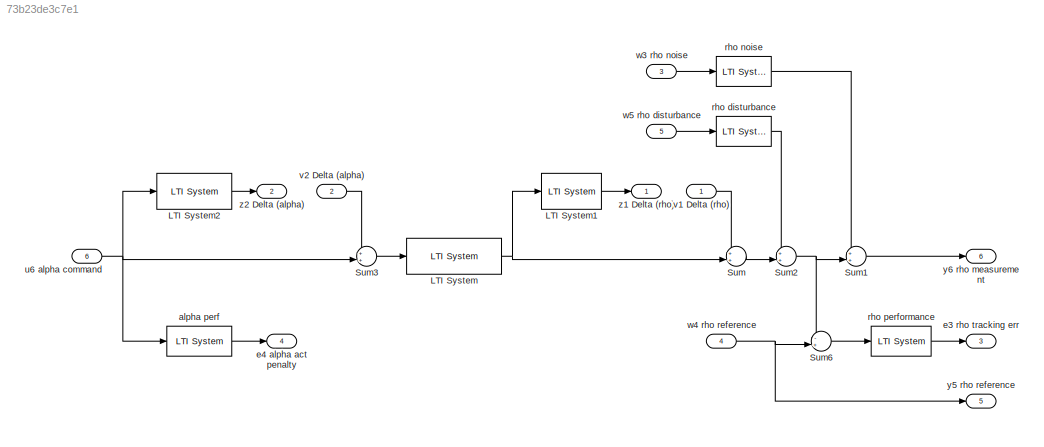
MODEL slx_73b23de3c7e1
KIND model
BLOCK [Reference] LTI System  REF=cstblocks/LTI System
  IC = []
  Ports = [1, 1]
  SourceBlock = cstblocks/LTI System
  SourceType = LTI Block
  sys = P_car
BLOCK [Reference] LTI System1  REF=cstblocks/LTI System
  IC = []
  Ports = [1, 1]
  SourceBlock = cstblocks/LTI System
  SourceType = LTI Block
  sys = W_rho
BLOCK [Reference] LTI System2  REF=cstblocks/LTI System
  IC = []
  Ports = [1, 1]
  SourceBlock = cstblocks/LTI System
  SourceType = LTI Block
  sys = W_alpha
BLOCK [Sum] Sum
  IconShape = round
  InputSameDT = off
  Inputs = ++|
  OutDataTypeStr = Inherit: Inherit via internal rule
  Ports = [2, 1]
  SaturateOnIntegerOverflow = off
BLOCK [Sum] Sum1
  IconShape = round
  InputSameDT = off
  Inputs = ++|
  OutDataTypeStr = Inherit: Inherit via internal rule
  Ports = [2, 1]
  SaturateOnIntegerOverflow = off
BLOCK [Sum] Sum2
  IconShape = round
  InputSameDT = off
  Inputs = ++|
  OutDataTypeStr = Inherit: Inherit via internal rule
  Ports = [2, 1]
  SaturateOnIntegerOverflow = off
BLOCK [Sum] Sum3
  IconShape = round
  InputSameDT = off
  Inputs = ++|
  OutDataTypeStr = Inherit: Inherit via internal rule
  Ports = [2, 1]
  SaturateOnIntegerOverflow = off
BLOCK [Sum] Sum6
  IconShape = round
  InputSameDT = off
  Inputs = -+|
  OutDataTypeStr = Inherit: Inherit via internal rule
  Ports = [2, 1]
  SaturateOnIntegerOverflow = off
BLOCK [Reference] alpha perf  REF=cstblocks/LTI System
  IC = []
  Ports = [1, 1]
  SourceBlock = cstblocks/LTI System
  SourceType = LTI Block
  sys = W_alphaperf
BLOCK [Outport] e3 rho tracking err
  IconDisplay = Port number
  Port = 3
BLOCK [Outport] e4 alpha act penalty
  IconDisplay = Port number
  Port = 4
BLOCK [Reference] rho disturbance  REF=cstblocks/LTI System
  IC = []
  Ports = [1, 1]
  SourceBlock = cstblocks/LTI System
  SourceType = LTI Block
  sys = W_rhod
BLOCK [Reference] rho noise  REF=cstblocks/LTI System
  IC = []
  Ports = [1, 1]
  SourceBlock = cstblocks/LTI System
  SourceType = LTI Block
  sys = W_rhon
BLOCK [Reference] rho performance  REF=cstblocks/LTI System
  IC = []
  Ports = [1, 1]
  SourceBlock = cstblocks/LTI System
  SourceType = LTI Block
  sys = W_rhoperf
BLOCK [Inport] u6 alpha command
  IconDisplay = Port number
  Port = 6
BLOCK [Inport] v1 Delta (rho)
  IconDisplay = Port number
BLOCK [Inport] v2 Delta (alpha)
  IconDisplay = Port number
  Port = 2
BLOCK [Inport] w3 rho noise
  IconDisplay = Port number
  Port = 3
BLOCK [Inport] w4 rho reference
  IconDisplay = Port number
  Port = 4
BLOCK [Inport] w5 rho disturbance
  IconDisplay = Port number
  Port = 5
BLOCK [Outport] y5 rho reference
  IconDisplay = Port number
  Port = 5
BLOCK [Outport] y6 rho measurement
  IconDisplay = Port number
  Port = 6
BLOCK [Outport] z1 Delta (rho)
  IconDisplay = Port number
BLOCK [Outport] z2 Delta (alpha)
  IconDisplay = Port number
  Port = 2
LINE LTI System1:1 -> z1 Delta (rho):1
LINE LTI System2:1 -> z2 Delta (alpha):1
NET LTI System:1 -> LTI System1:1, Sum:2
LINE Sum1:1 -> y6 rho measurement:1
NET Sum2:1 -> Sum1:2, Sum6:1
LINE Sum3:1 -> LTI System:1
LINE Sum6:1 -> rho performance:1
LINE Sum:1 -> Sum2:2
LINE alpha perf:1 -> e4 alpha act penalty:1
LINE rho disturbance:1 -> Sum2:1
LINE rho noise:1 -> Sum1:1
LINE rho performance:1 -> e3 rho tracking err:1
NET u6 alpha command:1 -> LTI System2:1, Sum3:2, alpha perf:1
LINE v1 Delta (rho):1 -> Sum:1
LINE v2 Delta (alpha):1 -> Sum3:1
LINE w3 rho noise:1 -> rho noise:1
NET w4 rho reference:1 -> Sum6:2, y5 rho reference:1
LINE w5 rho disturbance:1 -> rho disturbance:1
note: NET lines group one-source signal fan-out (src -> all destinations, sorted); 1:1 wires keep LINE
